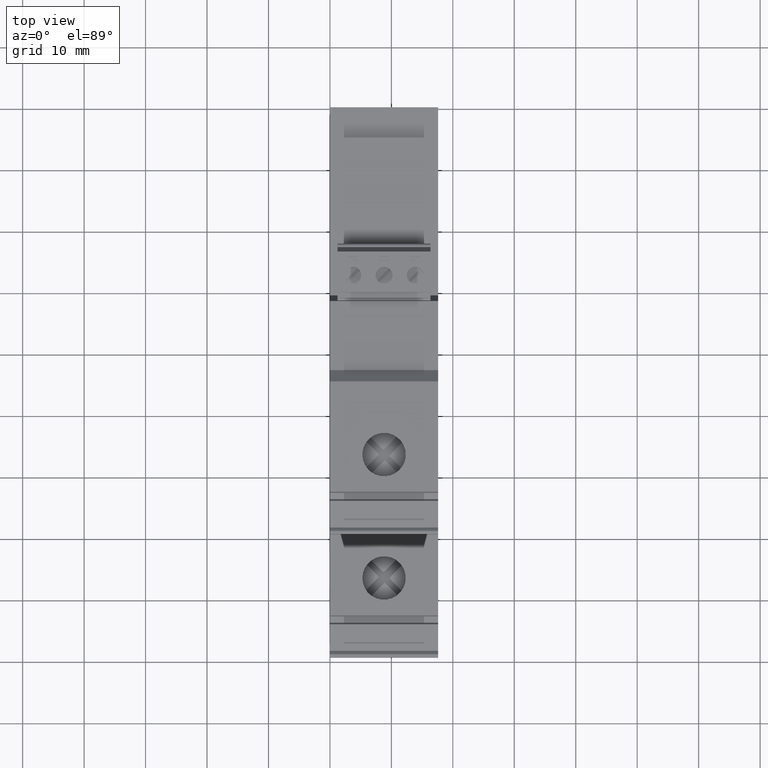
[diagram: clean part render]
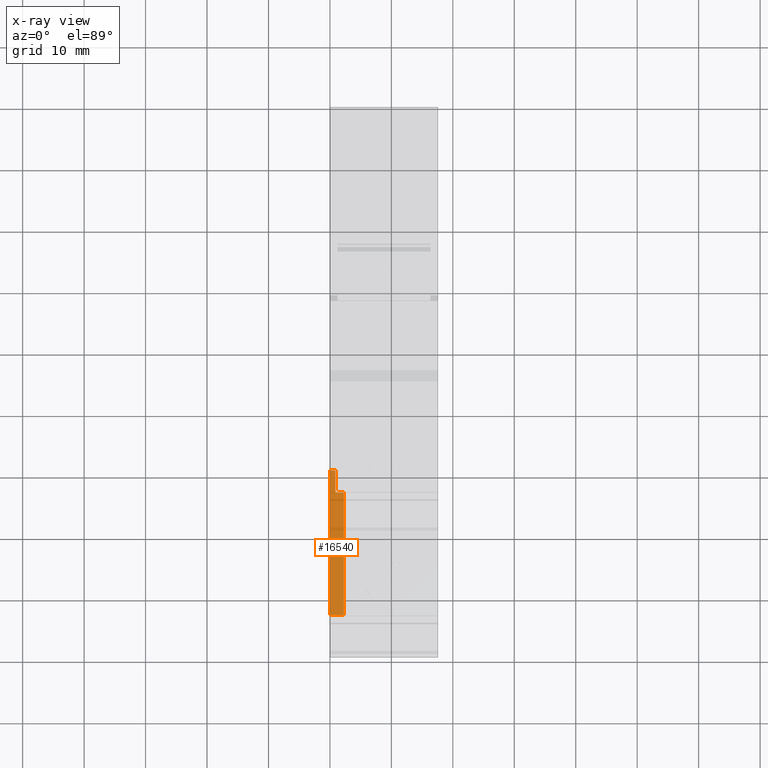
[diagram: x-ray — body ghosted, one internal face saturated and labeled with its STEP entity id]
A machine part, top view, then the same camera in x-ray: the body is ghosted and one INTERNAL B-rep face — a face not visible from any outside direction — is saturated and labeled: STEP entity #16540.
In plain terms, the highlighted planar face has unit normal (0, 0, 1).
Its self-contained STEP definition (entity closure, byte-faithful):
#4180=CARTESIAN_POINT('',(29.9962375248757,16.1331824583357,
2.28076099988845));
#4190=VERTEX_POINT('',#4180);
#4220=CARTESIAN_POINT('',(29.9962375248757,16.1929062869968,0.));
#4230=DIRECTION('',(-2.65412691824451E-16,0.0261769483078732,
-0.999657324975557));
#4240=VECTOR('',#4230,1.);
#4250=LINE('',#4220,#4240);
#4260=CARTESIAN_POINT('',(29.9962375248757,16.1383518634081,
2.08334938468873));
#4270=VERTEX_POINT('',#4260);
#4280=EDGE_CURVE('',#4190,#4270,#4250,.T.);
#15100=CARTESIAN_POINT('',(29.9962375248757,16.1383518634081,
0.880760999888411));
#15110=VERTEX_POINT('',#15100);
#15140=CARTESIAN_POINT('',(29.9962375248755,37.2383518634082,
0.880760999888411));
#15150=DIRECTION('',(1.25010560010342E-14,-1.,1.74456213612088E-30));
#15160=VECTOR('',#15150,1.);
#15170=LINE('',#15140,#15160);
#15180=CARTESIAN_POINT('',(29.9962375248757,19.7383518634081,
0.880760999888411));
#15190=VERTEX_POINT('',#15180);
#15200=EDGE_CURVE('',#15190,#15110,#15170,.T.);
#15970=CARTESIAN_POINT('',(29.9962375248757,16.1383518634081,
8.8807609998884));
#15980=DIRECTION('',(-6.24500451351651E-17,9.63870624619065E-31,1.));
#15990=VECTOR('',#15980,1.);
#16000=LINE('',#15970,#15990);
#16010=EDGE_CURVE('',#15110,#4270,#16000,.T.);
#16140=CARTESIAN_POINT('',(29.9962375248755,37.235493900701,
0.0807609998884011));
#16150=DIRECTION('',(-1.,-1.25010560010342E-14,-6.24500451351651E-17));
#16160=DIRECTION('',(-1.25010560010342E-14,1.,-1.74456213612088E-30));
#16170=AXIS2_PLACEMENT_3D('',#16140,#16150,#16160);
#16180=PLANE('',#16170);
#16190=CARTESIAN_POINT('',(29.9962375248755,37.2383518634082,
2.28076099988845));
#16200=DIRECTION('',(-1.25010560010342E-14,1.,-1.74456213612088E-30));
#16210=VECTOR('',#16200,1.);
#16220=LINE('',#16190,#16210);
#16230=CARTESIAN_POINT('',(29.996237524876,-3.76164813659183,
2.28076099988844));
#16240=VERTEX_POINT('',#16230);
#16250=EDGE_CURVE('',#16240,#4190,#16220,.T.);
#16260=ORIENTED_EDGE('',*,*,#16250,.T.);
#16270=CARTESIAN_POINT('',(29.996237524876,-3.76164813659183,
8.8807609998884));
#16280=DIRECTION('',(-6.24500451351651E-17,9.63870624619065E-31,1.));
#16290=VECTOR('',#16280,1.);
#16300=LINE('',#16270,#16290);
#16310=CARTESIAN_POINT('',(29.996237524876,-3.76164813659183,
0.0807609998884011));
#16320=VERTEX_POINT('',#16310);
#16330=EDGE_CURVE('',#16320,#16240,#16300,.T.);
#16340=ORIENTED_EDGE('',*,*,#16330,.T.);
#16350=CARTESIAN_POINT('',(29.9962375248755,37.2383518634082,
0.0807609998884011));
#16360=DIRECTION('',(-1.25010560010342E-14,1.,-1.74456213612088E-30));
#16370=VECTOR('',#16360,1.);
#16380=LINE('',#16350,#16370);
#16390=CARTESIAN_POINT('',(29.9962375248757,19.7383518634081,
0.0807609998884011));
#16400=VERTEX_POINT('',#16390);
#16410=EDGE_CURVE('',#16320,#16400,#16380,.T.);
#16420=ORIENTED_EDGE('',*,*,#16410,.F.);
#16430=CARTESIAN_POINT('',(29.9962375248757,19.7383518634081,
9.0807609998884));
#16440=DIRECTION('',(-6.24500451351651E-17,9.63870624619065E-31,1.));
#16450=VECTOR('',#16440,1.);
#16460=LINE('',#16430,#16450);
#16470=EDGE_CURVE('',#16400,#15190,#16460,.T.);
#16480=ORIENTED_EDGE('',*,*,#16470,.F.);
#16490=ORIENTED_EDGE('',*,*,#15200,.F.);
#16500=ORIENTED_EDGE('',*,*,#16010,.F.);
#16510=ORIENTED_EDGE('',*,*,#4280,.T.);
#16520=EDGE_LOOP('',(#16510,#16500,#16490,#16480,#16420,#16340,#16260));
#16530=FACE_OUTER_BOUND('',#16520,.T.);
#16540=ADVANCED_FACE('',(#16530),#16180,.T.);